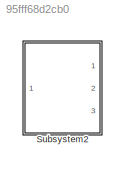
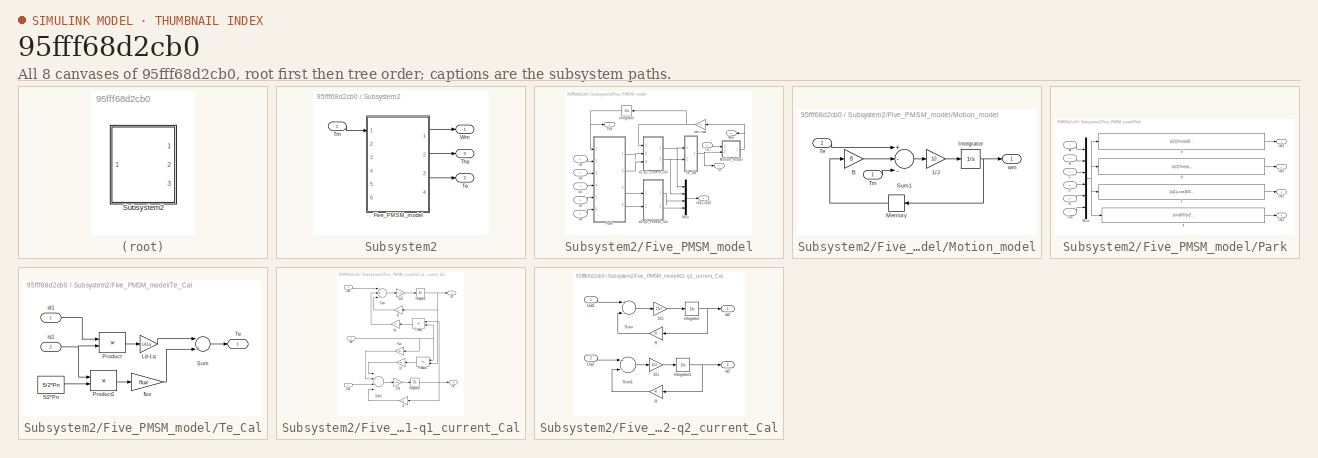
[diagram: thumbnail index - all 8 canvases of the model, root first then tree order]
MODEL slx_95fff68d2cb0
KIND model
BLOCK [SubSystem] Subsystem2
  Ports = [1, 3]
  RequestExecContextInheritance = off
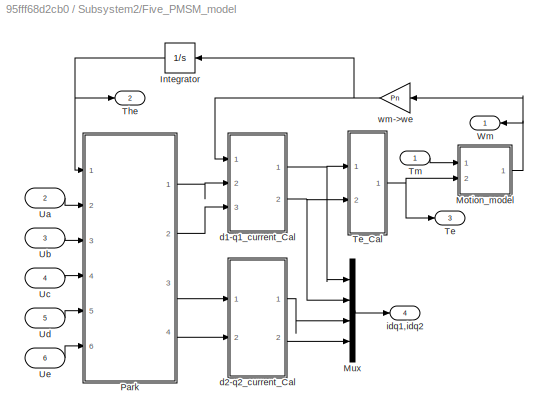
BLOCK [SubSystem] Subsystem2/Five_PMSM_model
  Ports = [6, 4]
  RequestExecContextInheritance = off
BLOCK [Integrator] Subsystem2/Five_PMSM_model/Integrator
  Ports = [1, 1]
BLOCK [SubSystem] Subsystem2/Five_PMSM_model/Motion_model
  Ports = [2, 1]
  RequestExecContextInheritance = off
BLOCK [Gain] Subsystem2/Five_PMSM_model/Motion_model/1//J
  Gain = 1/J
BLOCK [Gain] Subsystem2/Five_PMSM_model/Motion_model/B
  Gain = B
BLOCK [Integrator] Subsystem2/Five_PMSM_model/Motion_model/Integrator
  Ports = [1, 1]
BLOCK [Memory] Subsystem2/Five_PMSM_model/Motion_model/Memory
BLOCK [Sum] Subsystem2/Five_PMSM_model/Motion_model/Sum1
  InputSameDT = off
  Inputs = +--
  OutDataTypeStr = Inherit: Inherit via internal rule
  Ports = [3, 1]
BLOCK [Inport] Subsystem2/Five_PMSM_model/Motion_model/Te
  IconDisplay = Port number
  Port = 2
BLOCK [Inport] Subsystem2/Five_PMSM_model/Motion_model/Tm
  IconDisplay = Port number
BLOCK [Outport] Subsystem2/Five_PMSM_model/Motion_model/wm
  IconDisplay = Port number
BLOCK [Mux] Subsystem2/Five_PMSM_model/Mux
  DisplayOption = bar
  Ports = [4, 1]
BLOCK [SubSystem] Subsystem2/Five_PMSM_model/Park
  Ports = [6, 4]
  RequestExecContextInheritance = off
BLOCK [Inport] Subsystem2/Five_PMSM_model/Park/A
  IconDisplay = Port number
  Port = 2
BLOCK [Inport] Subsystem2/Five_PMSM_model/Park/B
  IconDisplay = Port number
  Port = 3
BLOCK [Inport] Subsystem2/Five_PMSM_model/Park/C
  IconDisplay = Port number
  Port = 4
BLOCK [Inport] Subsystem2/Five_PMSM_model/Park/D
  IconDisplay = Port number
  Port = 5
BLOCK [Inport] Subsystem2/Five_PMSM_model/Park/E
  IconDisplay = Port number
  Port = 6
BLOCK [Mux] Subsystem2/Five_PMSM_model/Park/Mux
  DisplayOption = bar
  Inputs = 6
  Ports = [6, 1]
BLOCK [Inport] Subsystem2/Five_PMSM_model/Park/The
  IconDisplay = Port number
BLOCK [Outport] Subsystem2/Five_PMSM_model/Park/Ud1 
  IconDisplay = Port number
BLOCK [Outport] Subsystem2/Five_PMSM_model/Park/Ud2
  IconDisplay = Port number
  Port = 3
BLOCK [Outport] Subsystem2/Five_PMSM_model/Park/Uq1
  IconDisplay = Port number
  Port = 2
BLOCK [Outport] Subsystem2/Five_PMSM_model/Park/Uq2
  IconDisplay = Port number
  Port = 4
BLOCK [Fcn] Subsystem2/Five_PMSM_model/Park/d
  Expr = (u(1)*cos(u(6))+u(2)*cos(u(6)-2/5*pi)+u(3)*cos(u(6)-4/5*pi)+u(4)*cos(u(6)-6/5*pi)+u(5)*cos(u(6)-8/5*pi))*2/5
BLOCK [Fcn] Subsystem2/Five_PMSM_model/Park/q
  Expr = -(u(1)*sin(u(6))+u(2)*sin(u(6)-2/5*pi)+u(3)*sin(u(6)-4/5*pi)+u(4)*sin(u(6)-6/5*pi)+u(5)*sin(u(6)-8/5*pi))*2/5
BLOCK [Fcn] Subsystem2/Five_PMSM_model/Park/x 
  Expr = (u(1)+cos(6/5*pi)*u(2)+cos(12/5*pi)*u(3)+cos(18/5*pi)*u(4)+cos(24/5*pi)*u(5))*2/5
BLOCK [Fcn] Subsystem2/Five_PMSM_model/Park/y 
  Expr = (sin(6/5*pi)*u(2)+sin(12/5*pi)*u(3)+sin(18/5*pi)*u(4)+sin(24/5*pi)*u(5))*2/5
BLOCK [Outport] Subsystem2/Five_PMSM_model/Te
  IconDisplay = Port number
  Port = 3
BLOCK [SubSystem] Subsystem2/Five_PMSM_model/Te_Cal
  Ports = [2, 1]
  RequestExecContextInheritance = off
BLOCK [Constant] Subsystem2/Five_PMSM_model/Te_Cal/5//2*Pn
  Value = 5/2*Pn
BLOCK [Gain] Subsystem2/Five_PMSM_model/Te_Cal/Ld-Lq
  Gain = Ld-Lq
BLOCK [Product] Subsystem2/Five_PMSM_model/Te_Cal/Product
  InputSameDT = off
  Ports = [2, 1]
  RndMeth = Floor
BLOCK [Product] Subsystem2/Five_PMSM_model/Te_Cal/Product1
  InputSameDT = off
  Ports = [2, 1]
  RndMeth = Floor
BLOCK [Sum] Subsystem2/Five_PMSM_model/Te_Cal/Sum
  InputSameDT = off
  Inputs = |++
  OutDataTypeStr = Inherit: Inherit via internal rule
  Ports = [2, 1]
BLOCK [Outport] Subsystem2/Five_PMSM_model/Te_Cal/Te
  IconDisplay = Port number
BLOCK [Gain] Subsystem2/Five_PMSM_model/Te_Cal/flux
  Gain = flux
BLOCK [Inport] Subsystem2/Five_PMSM_model/Te_Cal/id1
  IconDisplay = Port number
BLOCK [Inport] Subsystem2/Five_PMSM_model/Te_Cal/iq1
  IconDisplay = Port number
  Port = 2
BLOCK [Outport] Subsystem2/Five_PMSM_model/The
  IconDisplay = Port number
  Port = 2
BLOCK [Inport] Subsystem2/Five_PMSM_model/Tm
  IconDisplay = Port number
BLOCK [Inport] Subsystem2/Five_PMSM_model/Ua
  IconDisplay = Port number
  Port = 2
BLOCK [Inport] Subsystem2/Five_PMSM_model/Ub
  IconDisplay = Port number
  Port = 3
BLOCK [Inport] Subsystem2/Five_PMSM_model/Uc
  IconDisplay = Port number
  Port = 4
BLOCK [Inport] Subsystem2/Five_PMSM_model/Ud
  IconDisplay = Port number
  Port = 5
BLOCK [Inport] Subsystem2/Five_PMSM_model/Ue
  IconDisplay = Port number
  Port = 6
BLOCK [Outport] Subsystem2/Five_PMSM_model/Wm
  IconDisplay = Port number
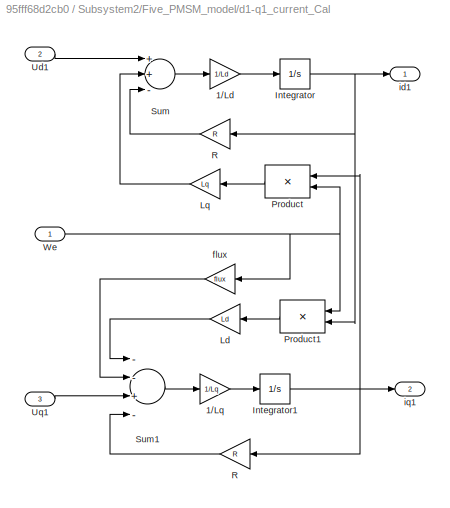
BLOCK [SubSystem] Subsystem2/Five_PMSM_model/d1-q1_current_Cal
  Ports = [3, 2]
  RequestExecContextInheritance = off
BLOCK [Gain] Subsystem2/Five_PMSM_model/d1-q1_current_Cal/1//Ld
  Gain = 1/Ld
BLOCK [Gain] Subsystem2/Five_PMSM_model/d1-q1_current_Cal/1//Lq
  Gain = 1/Lq
BLOCK [Integrator] Subsystem2/Five_PMSM_model/d1-q1_current_Cal/Integrator
  InitialCondition = 0.01
  Ports = [1, 1]
BLOCK [Integrator] Subsystem2/Five_PMSM_model/d1-q1_current_Cal/Integrator1
  Ports = [1, 1]
BLOCK [Gain] Subsystem2/Five_PMSM_model/d1-q1_current_Cal/Ld
  Gain = Ld
BLOCK [Gain] Subsystem2/Five_PMSM_model/d1-q1_current_Cal/Lq
  Gain = Lq
BLOCK [Product] Subsystem2/Five_PMSM_model/d1-q1_current_Cal/Product
  InputSameDT = off
  Ports = [2, 1]
  RndMeth = Floor
BLOCK [Product] Subsystem2/Five_PMSM_model/d1-q1_current_Cal/Product1
  InputSameDT = off
  Ports = [2, 1]
  RndMeth = Floor
BLOCK [Gain] Subsystem2/Five_PMSM_model/d1-q1_current_Cal/R
  Gain = R
BLOCK [Gain] Subsystem2/Five_PMSM_model/d1-q1_current_Cal/R 
  Gain = R
BLOCK [Sum] Subsystem2/Five_PMSM_model/d1-q1_current_Cal/Sum
  InputSameDT = off
  Inputs = ++-
  OutDataTypeStr = Inherit: Inherit via internal rule
  Ports = [3, 1]
BLOCK [Sum] Subsystem2/Five_PMSM_model/d1-q1_current_Cal/Sum1
  InputSameDT = off
  Inputs = --+-
  OutDataTypeStr = Inherit: Inherit via internal rule
  Ports = [4, 1]
BLOCK [Inport] Subsystem2/Five_PMSM_model/d1-q1_current_Cal/Ud1
  IconDisplay = Port number
  Port = 2
BLOCK [Inport] Subsystem2/Five_PMSM_model/d1-q1_current_Cal/Uq1
  IconDisplay = Port number
  Port = 3
BLOCK [Inport] Subsystem2/Five_PMSM_model/d1-q1_current_Cal/We
  IconDisplay = Port number
BLOCK [Gain] Subsystem2/Five_PMSM_model/d1-q1_current_Cal/flux
  Gain = flux
BLOCK [Outport] Subsystem2/Five_PMSM_model/d1-q1_current_Cal/id1
  IconDisplay = Port number
BLOCK [Outport] Subsystem2/Five_PMSM_model/d1-q1_current_Cal/iq1
  IconDisplay = Port number
  Port = 2
BLOCK [SubSystem] Subsystem2/Five_PMSM_model/d2-q2_current_Cal
  Ports = [2, 2]
  RequestExecContextInheritance = off
BLOCK [Gain] Subsystem2/Five_PMSM_model/d2-q2_current_Cal/1//Ll
  Gain = 1/Ll
BLOCK [Gain] Subsystem2/Five_PMSM_model/d2-q2_current_Cal/1//Ll 
  Gain = 1/Ll
BLOCK [Integrator] Subsystem2/Five_PMSM_model/d2-q2_current_Cal/Integrator
  InitialCondition = 0.01
  Ports = [1, 1]
BLOCK [Integrator] Subsystem2/Five_PMSM_model/d2-q2_current_Cal/Integrator1
  Ports = [1, 1]
BLOCK [Gain] Subsystem2/Five_PMSM_model/d2-q2_current_Cal/R
  Gain = R
BLOCK [Gain] Subsystem2/Five_PMSM_model/d2-q2_current_Cal/R 
  Gain = R
BLOCK [Sum] Subsystem2/Five_PMSM_model/d2-q2_current_Cal/Sum
  InputSameDT = off
  Inputs = +-
  OutDataTypeStr = Inherit: Inherit via internal rule
  Ports = [2, 1]
BLOCK [Sum] Subsystem2/Five_PMSM_model/d2-q2_current_Cal/Sum1
  InputSameDT = off
  Inputs = +-
  OutDataTypeStr = Inherit: Inherit via internal rule
  Ports = [2, 1]
BLOCK [Inport] Subsystem2/Five_PMSM_model/d2-q2_current_Cal/Ud2
  IconDisplay = Port number
BLOCK [Inport] Subsystem2/Five_PMSM_model/d2-q2_current_Cal/Uq2
  IconDisplay = Port number
  Port = 2
BLOCK [Outport] Subsystem2/Five_PMSM_model/d2-q2_current_Cal/id2
  IconDisplay = Port number
BLOCK [Outport] Subsystem2/Five_PMSM_model/d2-q2_current_Cal/iq2
  IconDisplay = Port number
  Port = 2
BLOCK [Outport] Subsystem2/Five_PMSM_model/idq1,idq2
  IconDisplay = Port number
  Port = 4
BLOCK [Gain] Subsystem2/Five_PMSM_model/wm->we
  Gain = Pn
BLOCK [Outport] Subsystem2/Te
  IconDisplay = Port number
  Port = 2
BLOCK [Outport] Subsystem2/The
  IconDisplay = Port number
  Port = 3
BLOCK [Inport] Subsystem2/Tm
  IconDisplay = Port number
BLOCK [Outport] Subsystem2/Wm
  IconDisplay = Port number
NET Subsystem2/Five_PMSM_model/Integrator:1 -> Subsystem2/Five_PMSM_model/Park:1, Subsystem2/Five_PMSM_model/The:1
LINE Subsystem2/Five_PMSM_model/Motion_model/1//J:1 -> Subsystem2/Five_PMSM_model/Motion_model/Integrator:1
LINE Subsystem2/Five_PMSM_model/Motion_model/B:1 -> Subsystem2/Five_PMSM_model/Motion_model/Sum1:2
NET Subsystem2/Five_PMSM_model/Motion_model/Integrator:1 -> Subsystem2/Five_PMSM_model/Motion_model/Memory:1, Subsystem2/Five_PMSM_model/Motion_model/wm:1
LINE Subsystem2/Five_PMSM_model/Motion_model/Memory:1 -> Subsystem2/Five_PMSM_model/Motion_model/B:1
LINE Subsystem2/Five_PMSM_model/Motion_model/Sum1:1 -> Subsystem2/Five_PMSM_model/Motion_model/1//J:1
LINE Subsystem2/Five_PMSM_model/Motion_model/Te:1 -> Subsystem2/Five_PMSM_model/Motion_model/Sum1:1
LINE Subsystem2/Five_PMSM_model/Motion_model/Tm:1 -> Subsystem2/Five_PMSM_model/Motion_model/Sum1:3
NET Subsystem2/Five_PMSM_model/Motion_model:1 -> Subsystem2/Five_PMSM_model/Wm:1, Subsystem2/Five_PMSM_model/wm->we:1
LINE Subsystem2/Five_PMSM_model/Mux:1 -> Subsystem2/Five_PMSM_model/idq1,idq2:1
LINE Subsystem2/Five_PMSM_model/Park/A:1 -> Subsystem2/Five_PMSM_model/Park/Mux:1
LINE Subsystem2/Five_PMSM_model/Park/B:1 -> Subsystem2/Five_PMSM_model/Park/Mux:2
LINE Subsystem2/Five_PMSM_model/Park/C:1 -> Subsystem2/Five_PMSM_model/Park/Mux:3
LINE Subsystem2/Five_PMSM_model/Park/D:1 -> Subsystem2/Five_PMSM_model/Park/Mux:4
LINE Subsystem2/Five_PMSM_model/Park/E:1 -> Subsystem2/Five_PMSM_model/Park/Mux:5
NET Subsystem2/Five_PMSM_model/Park/Mux:1 -> Subsystem2/Five_PMSM_model/Park/d:1, Subsystem2/Five_PMSM_model/Park/q:1, Subsystem2/Five_PMSM_model/Park/x :1, Subsystem2/Five_PMSM_model/Park/y :1
LINE Subsystem2/Five_PMSM_model/Park/The:1 -> Subsystem2/Five_PMSM_model/Park/Mux:6
LINE Subsystem2/Five_PMSM_model/Park/d:1 -> Subsystem2/Five_PMSM_model/Park/Ud1 :1
LINE Subsystem2/Five_PMSM_model/Park/q:1 -> Subsystem2/Five_PMSM_model/Park/Uq1:1
LINE Subsystem2/Five_PMSM_model/Park/x :1 -> Subsystem2/Five_PMSM_model/Park/Ud2:1
LINE Subsystem2/Five_PMSM_model/Park/y :1 -> Subsystem2/Five_PMSM_model/Park/Uq2:1
LINE Subsystem2/Five_PMSM_model/Park:1 -> Subsystem2/Five_PMSM_model/d1-q1_current_Cal:2
LINE Subsystem2/Five_PMSM_model/Park:2 -> Subsystem2/Five_PMSM_model/d1-q1_current_Cal:3
LINE Subsystem2/Five_PMSM_model/Park:3 -> Subsystem2/Five_PMSM_model/d2-q2_current_Cal:1
LINE Subsystem2/Five_PMSM_model/Park:4 -> Subsystem2/Five_PMSM_model/d2-q2_current_Cal:2
LINE Subsystem2/Five_PMSM_model/Te_Cal/5//2*Pn:1 -> Subsystem2/Five_PMSM_model/Te_Cal/Product1:2
LINE Subsystem2/Five_PMSM_model/Te_Cal/Ld-Lq:1 -> Subsystem2/Five_PMSM_model/Te_Cal/Sum:1
LINE Subsystem2/Five_PMSM_model/Te_Cal/Product1:1 -> Subsystem2/Five_PMSM_model/Te_Cal/flux:1
LINE Subsystem2/Five_PMSM_model/Te_Cal/Product:1 -> Subsystem2/Five_PMSM_model/Te_Cal/Ld-Lq:1
LINE Subsystem2/Five_PMSM_model/Te_Cal/Sum:1 -> Subsystem2/Five_PMSM_model/Te_Cal/Te:1
LINE Subsystem2/Five_PMSM_model/Te_Cal/flux:1 -> Subsystem2/Five_PMSM_model/Te_Cal/Sum:2
LINE Subsystem2/Five_PMSM_model/Te_Cal/id1:1 -> Subsystem2/Five_PMSM_model/Te_Cal/Product:1
NET Subsystem2/Five_PMSM_model/Te_Cal/iq1:1 -> Subsystem2/Five_PMSM_model/Te_Cal/Product1:1, Subsystem2/Five_PMSM_model/Te_Cal/Product:2
NET Subsystem2/Five_PMSM_model/Te_Cal:1 -> Subsystem2/Five_PMSM_model/Motion_model:2, Subsystem2/Five_PMSM_model/Te:1
LINE Subsystem2/Five_PMSM_model/Tm:1 -> Subsystem2/Five_PMSM_model/Motion_model:1
LINE Subsystem2/Five_PMSM_model/Ua:1 -> Subsystem2/Five_PMSM_model/Park:2
LINE Subsystem2/Five_PMSM_model/Ub:1 -> Subsystem2/Five_PMSM_model/Park:3
LINE Subsystem2/Five_PMSM_model/Uc:1 -> Subsystem2/Five_PMSM_model/Park:4
LINE Subsystem2/Five_PMSM_model/Ud:1 -> Subsystem2/Five_PMSM_model/Park:5
LINE Subsystem2/Five_PMSM_model/Ue:1 -> Subsystem2/Five_PMSM_model/Park:6
LINE Subsystem2/Five_PMSM_model/d1-q1_current_Cal/1//Ld:1 -> Subsystem2/Five_PMSM_model/d1-q1_current_Cal/Integrator:1
LINE Subsystem2/Five_PMSM_model/d1-q1_current_Cal/1//Lq:1 -> Subsystem2/Five_PMSM_model/d1-q1_current_Cal/Integrator1:1
NET Subsystem2/Five_PMSM_model/d1-q1_current_Cal/Integrator1:1 -> Subsystem2/Five_PMSM_model/d1-q1_current_Cal/Product:1, Subsystem2/Five_PMSM_model/d1-q1_current_Cal/R :1, Subsystem2/Five_PMSM_model/d1-q1_current_Cal/iq1:1
NET Subsystem2/Five_PMSM_model/d1-q1_current_Cal/Integrator:1 -> Subsystem2/Five_PMSM_model/d1-q1_current_Cal/Product1:2, Subsystem2/Five_PMSM_model/d1-q1_current_Cal/R:1, Subsystem2/Five_PMSM_model/d1-q1_current_Cal/id1:1
LINE Subsystem2/Five_PMSM_model/d1-q1_current_Cal/Ld:1 -> Subsystem2/Five_PMSM_model/d1-q1_current_Cal/Sum1:1
LINE Subsystem2/Five_PMSM_model/d1-q1_current_Cal/Lq:1 -> Subsystem2/Five_PMSM_model/d1-q1_current_Cal/Sum:2
LINE Subsystem2/Five_PMSM_model/d1-q1_current_Cal/Product1:1 -> Subsystem2/Five_PMSM_model/d1-q1_current_Cal/Ld:1
LINE Subsystem2/Five_PMSM_model/d1-q1_current_Cal/Product:1 -> Subsystem2/Five_PMSM_model/d1-q1_current_Cal/Lq:1
LINE Subsystem2/Five_PMSM_model/d1-q1_current_Cal/R :1 -> Subsystem2/Five_PMSM_model/d1-q1_current_Cal/Sum1:4
LINE Subsystem2/Five_PMSM_model/d1-q1_current_Cal/R:1 -> Subsystem2/Five_PMSM_model/d1-q1_current_Cal/Sum:3
LINE Subsystem2/Five_PMSM_model/d1-q1_current_Cal/Sum1:1 -> Subsystem2/Five_PMSM_model/d1-q1_current_Cal/1//Lq:1
LINE Subsystem2/Five_PMSM_model/d1-q1_current_Cal/Sum:1 -> Subsystem2/Five_PMSM_model/d1-q1_current_Cal/1//Ld:1
LINE Subsystem2/Five_PMSM_model/d1-q1_current_Cal/Ud1:1 -> Subsystem2/Five_PMSM_model/d1-q1_current_Cal/Sum:1
LINE Subsystem2/Five_PMSM_model/d1-q1_current_Cal/Uq1:1 -> Subsystem2/Five_PMSM_model/d1-q1_current_Cal/Sum1:3
NET Subsystem2/Five_PMSM_model/d1-q1_current_Cal/We:1 -> Subsystem2/Five_PMSM_model/d1-q1_current_Cal/Product1:1, Subsystem2/Five_PMSM_model/d1-q1_current_Cal/Product:2, Subsystem2/Five_PMSM_model/d1-q1_current_Cal/flux:1
LINE Subsystem2/Five_PMSM_model/d1-q1_current_Cal/flux:1 -> Subsystem2/Five_PMSM_model/d1-q1_current_Cal/Sum1:2
NET Subsystem2/Five_PMSM_model/d1-q1_current_Cal:1 -> Subsystem2/Five_PMSM_model/Mux:1, Subsystem2/Five_PMSM_model/Te_Cal:1
NET Subsystem2/Five_PMSM_model/d1-q1_current_Cal:2 -> Subsystem2/Five_PMSM_model/Mux:2, Subsystem2/Five_PMSM_model/Te_Cal:2
LINE Subsystem2/Five_PMSM_model/d2-q2_current_Cal/1//Ll :1 -> Subsystem2/Five_PMSM_model/d2-q2_current_Cal/Integrator:1
LINE Subsystem2/Five_PMSM_model/d2-q2_current_Cal/1//Ll:1 -> Subsystem2/Five_PMSM_model/d2-q2_current_Cal/Integrator1:1
NET Subsystem2/Five_PMSM_model/d2-q2_current_Cal/Integrator1:1 -> Subsystem2/Five_PMSM_model/d2-q2_current_Cal/R :1, Subsystem2/Five_PMSM_model/d2-q2_current_Cal/iq2:1
NET Subsystem2/Five_PMSM_model/d2-q2_current_Cal/Integrator:1 -> Subsystem2/Five_PMSM_model/d2-q2_current_Cal/R:1, Subsystem2/Five_PMSM_model/d2-q2_current_Cal/id2:1
LINE Subsystem2/Five_PMSM_model/d2-q2_current_Cal/R :1 -> Subsystem2/Five_PMSM_model/d2-q2_current_Cal/Sum1:2
LINE Subsystem2/Five_PMSM_model/d2-q2_current_Cal/R:1 -> Subsystem2/Five_PMSM_model/d2-q2_current_Cal/Sum:2
LINE Subsystem2/Five_PMSM_model/d2-q2_current_Cal/Sum1:1 -> Subsystem2/Five_PMSM_model/d2-q2_current_Cal/1//Ll:1
LINE Subsystem2/Five_PMSM_model/d2-q2_current_Cal/Sum:1 -> Subsystem2/Five_PMSM_model/d2-q2_current_Cal/1//Ll :1
LINE Subsystem2/Five_PMSM_model/d2-q2_current_Cal/Ud2:1 -> Subsystem2/Five_PMSM_model/d2-q2_current_Cal/Sum:1
LINE Subsystem2/Five_PMSM_model/d2-q2_current_Cal/Uq2:1 -> Subsystem2/Five_PMSM_model/d2-q2_current_Cal/Sum1:1
LINE Subsystem2/Five_PMSM_model/d2-q2_current_Cal:1 -> Subsystem2/Five_PMSM_model/Mux:3
LINE Subsystem2/Five_PMSM_model/d2-q2_current_Cal:2 -> Subsystem2/Five_PMSM_model/Mux:4
NET Subsystem2/Five_PMSM_model/wm->we:1 -> Subsystem2/Five_PMSM_model/Integrator:1, Subsystem2/Five_PMSM_model/d1-q1_current_Cal:1
LINE Subsystem2/Five_PMSM_model:1 -> Subsystem2/Wm:1
LINE Subsystem2/Five_PMSM_model:2 -> Subsystem2/The:1
LINE Subsystem2/Five_PMSM_model:3 -> Subsystem2/Te:1
LINE Subsystem2/Tm:1 -> Subsystem2/Five_PMSM_model:1
note: NET lines group one-source signal fan-out (src -> all destinations, sorted); 1:1 wires keep LINE
